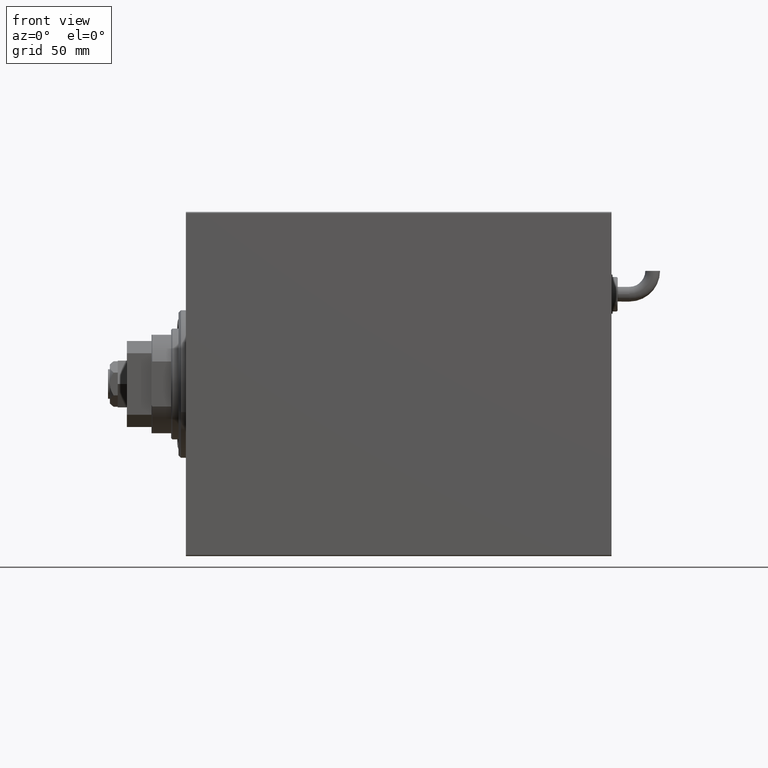
[diagram: clean part render]
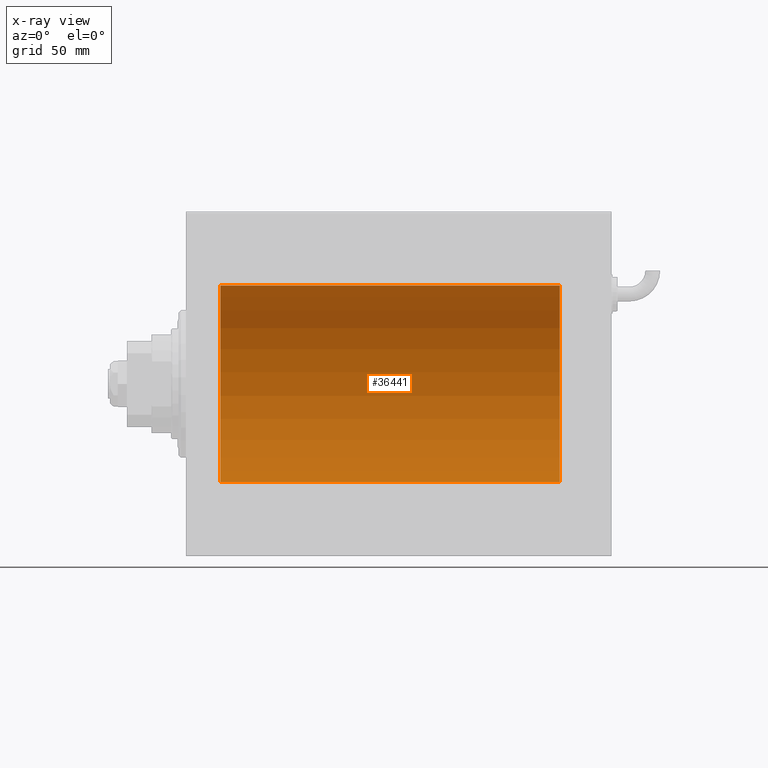
[diagram: x-ray — body ghosted, one internal face saturated and labeled with its STEP entity id]
A machine part, front view, then the same camera in x-ray: the body is ghosted and one INTERNAL B-rep face — a face not visible from any outside direction — is saturated and labeled: STEP entity #36441.
In plain terms, the highlighted cylindrical surface (partial cylindrical patch) has radius 40 mm, axis along (-1, -0, -0).
Its self-contained STEP definition (entity closure, byte-faithful):
#92 = CARTESIAN_POINT ( 'NONE',  ( 147.3935020639295033, 2.980544951704983792, -39.88881833341081062 ) ) ;
#997 = CARTESIAN_POINT ( 'NONE',  ( 146.0319915523671455, 2.846249845702965242, -39.89867772821342129 ) ) ;
#1017 = CARTESIAN_POINT ( 'NONE',  ( 152.0000000000000000, 4.898587196589413026E-15, -40.00000000000000000 ) ) ;
#1299 = CARTESIAN_POINT ( 'NONE',  ( 146.8031755022305731, 2.999929504480790321, -39.88734665245503663 ) ) ;
#1427 = CARTESIAN_POINT ( 'NONE',  ( 33.74070487342093827, 1.983397227149410025, -39.95103655448513535 ) ) ;
#2005 = CARTESIAN_POINT ( 'NONE',  ( 34.49643569916604946, 2.603499486649436090, -39.91533365697402758 ) ) ;
#4627 = CARTESIAN_POINT ( 'NONE',  ( 147.1946696137275978, 3.000070108558746007, -39.88733607736548237 ) ) ;
#4804 = ORIENTED_EDGE ( 'NONE', *, *, #52310, .F. ) ;
#5397 = CARTESIAN_POINT ( 'NONE',  ( 152.0000000000000000, 4.898587196589413026E-15, -40.00000000000000000 ) ) ;
#5424 = LINE ( 'NONE', #37148, #52352 ) ;
#5538 = CARTESIAN_POINT ( 'NONE',  ( 145.1684626644925515, 2.384195078505191745, -39.92903310064217237 ) ) ;
#6130 = CARTESIAN_POINT ( 'NONE',  ( 150.0000000000000284, 0.1958295874890079447, -39.99999999999999289 ) ) ;
#6263 = CARTESIAN_POINT ( 'NONE',  ( 38.69635323069529420, 1.329803094607265201, -39.97830262548650637 ) ) ;
#6428 = CARTESIAN_POINT ( 'NONE',  ( 148.3286925611234324, 2.696891635062796500, -39.90905226542625428 ) ) ;
#6842 = CARTESIAN_POINT ( 'NONE',  ( 38.26098393863168923, 1.981711254113870613, -39.95112616827061913 ) ) ;
#7008 = CARTESIAN_POINT ( 'NONE',  ( 149.9036449538775173, 0.7792872749133293864, -39.99287049138470707 ) ) ;
#7313 = CARTESIAN_POINT ( 'NONE',  ( 147.9653829776025589, 2.847223932150704240, -39.89860891179019120 ) ) ;
#7919 = EDGE_LOOP ( 'NONE', ( #4804, #9929, #53117, #31182, #26286, #40739, #33252, #50704 ) ) ;
#8629 = B_SPLINE_CURVE_WITH_KNOTS ( 'NONE', 3,
 ( #23682, #24283, #19144, #37559, #41481, #14606, #27612, #33031, #51480, #10076, #5538, #10374, #28511, #997, #51795, #42683, #1299, #4627, #92, #25155, #7313, #6428, #34510, #52672, #20339, #20047, #43279, #15503, #39041, #48717, #7008, #33923, #6130, #11548 ),
 .UNSPECIFIED., .F., .F.,
 ( 4, 2, 2, 2, 2, 2, 2, 2, 2, 2, 2, 2, 2, 2, 2, 2, 4 ),
 ( 2.203917256251973750E-18, 0.0005864162728940708162, 0.001172832545788139464, 0.001759248818682208112, 0.002345665091576277193, 0.002932081364470346275, 0.003518497637364414923, 0.004104913910258484004, 0.004691330183152552652, 0.005277746456046621300, 0.005864162728940689948, 0.006450579001834758595, 0.007036995274728826376, 0.007623411547622895024, 0.008209827820516962804, 0.008796244093411032319, 0.009382660366305101834 ),
 .UNSPECIFIED. ) ;
#8794 = EDGE_CURVE ( 'NONE', #32325, #21535, #9487, .T. ) ;
#9487 = LINE ( 'NONE', #1017, #12137 ) ;
#9552 = DIRECTION ( 'NONE',  ( -1.000000000000000000, -0.000000000000000000, -0.000000000000000000 ) ) ;
#9627 = DIRECTION ( 'NONE',  ( -1.000000000000000000, -0.000000000000000000, -0.000000000000000000 ) ) ;
#9929 = ORIENTED_EDGE ( 'NONE', *, *, #40840, .F. ) ;
#10076 = CARTESIAN_POINT ( 'NONE',  ( 145.0174478800970519, 2.260036752248971492, -39.93634209860680073 ) ) ;
#10374 = CARTESIAN_POINT ( 'NONE',  ( 145.4964356991661134, 2.603499486649421879, -39.91533365697404889 ) ) ;
#10496 = CARTESIAN_POINT ( 'NONE',  ( 35.80317550223061573, 2.999929504480807196, -39.88734665245503663 ) ) ;
#10695 = VERTEX_POINT ( 'NONE', #45301 ) ;
#10802 = CARTESIAN_POINT ( 'NONE',  ( 37.32869256112343237, 2.696891635062812487, -39.90905226542624717 ) ) ;
#11054 = B_SPLINE_CURVE_WITH_KNOTS ( 'NONE', 3,
 ( #24408, #24992, #19881, #47958, #15932, #34642, #53100, #42816, #1427, #11678, #38577, #2005, #34348, #52504, #38285, #52806, #10496, #15337, #33751, #52210, #29232, #10802, #28936, #47356, #57036, #6842, #20467, #47666, #6263, #24709, #57347, #57640, #15627, #43110 ),
 .UNSPECIFIED., .F., .F.,
 ( 4, 2, 2, 2, 2, 2, 2, 2, 2, 2, 2, 2, 2, 2, 2, 2, 4 ),
 ( 3.904922793221654316E-19, 0.0005864162728940700573, 0.001172832545788139681, 0.001759248818682208762, 0.002345665091576278061, 0.002932081364470347576, 0.003518497637364417091, 0.004104913910258486606, 0.004691330183152556121, 0.005277746456046625637, 0.005864162728940695152, 0.006450579001834764667, 0.007036995274728834182, 0.007623411547622903697, 0.008209827820516973212, 0.008796244093411044462, 0.009382660366305113978 ),
 .UNSPECIFIED. ) ;
#11381 = CARTESIAN_POINT ( 'NONE',  ( 152.0000000000000000, 0.000000000000000000, 0.000000000000000000 ) ) ;
#11548 = CARTESIAN_POINT ( 'NONE',  ( 150.0000000000000284, 4.898587181765620889E-15, -40.00000000000000000 ) ) ;
#11678 = CARTESIAN_POINT ( 'NONE',  ( 34.01744788009703058, 2.260036752248987479, -39.93634209860680073 ) ) ;
#12137 = VECTOR ( 'NONE', #46338, 1000.000000000000000 ) ;
#12669 = VERTEX_POINT ( 'NONE', #41771 ) ;
#13089 = DIRECTION ( 'NONE',  ( -1.000000000000000000, 0.000000000000000000, 0.000000000000000000 ) ) ;
#13164 = CYLINDRICAL_SURFACE ( 'NONE', #37257, 40.00000000000000000 ) ;
#13394 = EDGE_CURVE ( 'NONE', #32325, #42146, #8629, .T. ) ;
#14606 = CARTESIAN_POINT ( 'NONE',  ( 144.3040879581895979, 1.330687358699877310, -39.97827280031937391 ) ) ;
#15337 = CARTESIAN_POINT ( 'NONE',  ( 36.19466961372759073, 3.000070108558761994, -39.88733607736547526 ) ) ;
#15503 = CARTESIAN_POINT ( 'NONE',  ( 149.6024213809766081, 1.505187563392005323, -39.97200074276641146 ) ) ;
#15627 = CARTESIAN_POINT ( 'NONE',  ( 39.00000000000000000, 0.1958295874890065291, -40.00000000000000711 ) ) ;
#15932 = CARTESIAN_POINT ( 'NONE',  ( 33.15345075433262423, 0.9673820216299632291, -39.98871336974453072 ) ) ;
#16047 = CARTESIAN_POINT ( 'NONE',  ( 152.0000000000000000, 0.000000000000000000, 40.00000000000000000 ) ) ;
#16133 = AXIS2_PLACEMENT_3D ( 'NONE', #11381, #42805, #25276 ) ;
#17673 = CARTESIAN_POINT ( 'NONE',  ( 150.0000000000000284, 4.898587181765620889E-15, -40.00000000000000000 ) ) ;
#17990 = DIRECTION ( 'NONE',  ( -1.000000000000000000, -0.000000000000000000, -0.000000000000000000 ) ) ;
#19144 = CARTESIAN_POINT ( 'NONE',  ( 144.0194663043102423, 0.3932559001416424116, -39.99852666141217128 ) ) ;
#19881 = CARTESIAN_POINT ( 'NONE',  ( 33.01946630431021390, 0.3932559001416509048, -39.99852666141217838 ) ) ;
#19937 = DIRECTION ( 'NONE',  ( -1.000000000000000000, -0.000000000000000000, -0.000000000000000000 ) ) ;
#20047 = CARTESIAN_POINT ( 'NONE',  ( 149.2609839386317105, 1.981711254113862841, -39.95112616827061203 ) ) ;
#20339 = CARTESIAN_POINT ( 'NONE',  ( 148.9808298560388948, 2.261756164323876384, -39.93625070860935722 ) ) ;
#20467 = CARTESIAN_POINT ( 'NONE',  ( 38.38516937969400544, 1.830069308885378776, -39.95844440547435283 ) ) ;
#21535 = VERTEX_POINT ( 'NONE', #34566 ) ;
#23560 = AXIS2_PLACEMENT_3D ( 'NONE', #31217, #13089, #58137 ) ;
#23565 = EDGE_CURVE ( 'NONE', #48151, #53767, #5424, .T. ) ;
#23682 = CARTESIAN_POINT ( 'NONE',  ( 144.0000000000000284, 2.642090954555614270E-16, -40.00000000000000000 ) ) ;
#24283 = CARTESIAN_POINT ( 'NONE',  ( 144.0000000000000568, 0.1982918730505173199, -40.00000000000000000 ) ) ;
#24408 = CARTESIAN_POINT ( 'NONE',  ( 32.99999999999999289, 8.398598542115384856E-15, -40.00000000000000000 ) ) ;
#24709 = CARTESIAN_POINT ( 'NONE',  ( 38.84691433360895019, 0.9663207501652123499, -39.98873943115997776 ) ) ;
#24992 = CARTESIAN_POINT ( 'NONE',  ( 32.99999999999998579, 0.1982918730505277005, -39.99999999999999289 ) ) ;
#25155 = CARTESIAN_POINT ( 'NONE',  ( 147.7783335886197733, 2.903909245874797485, -39.89447063612583122 ) ) ;
#25276 = DIRECTION ( 'NONE',  ( 0.000000000000000000, 0.000000000000000000, 1.000000000000000000 ) ) ;
#25987 = EDGE_CURVE ( 'NONE', #51484, #12669, #37949, .T. ) ;
#26141 = CARTESIAN_POINT ( 'NONE',  ( 32.99999999999999289, 8.398598542115384856E-15, -40.00000000000000000 ) ) ;
#26286 = ORIENTED_EDGE ( 'NONE', *, *, #25987, .F. ) ;
#27612 = CARTESIAN_POINT ( 'NONE',  ( 144.3962588482174851, 1.502986292339231644, -39.97208601512195969 ) ) ;
#28287 = CARTESIAN_POINT ( 'NONE',  ( 152.0000000000000000, 4.898587196589413026E-15, -40.00000000000000000 ) ) ;
#28511 = CARTESIAN_POINT ( 'NONE',  ( 145.6709769446328266, 2.696641662727008448, -39.90906847305313221 ) ) ;
#28936 = CARTESIAN_POINT ( 'NONE',  ( 37.50429356860058761, 2.602941461497656039, -39.91536715259250911 ) ) ;
#29232 = CARTESIAN_POINT ( 'NONE',  ( 36.96538297760252334, 2.847223932150720671, -39.89860891179020541 ) ) ;
#31182 = ORIENTED_EDGE ( 'NONE', *, *, #31941, .T. ) ;
#31217 = CARTESIAN_POINT ( 'NONE',  ( 13.99999999999998401, 0.000000000000000000, 0.000000000000000000 ) ) ;
#31941 = EDGE_CURVE ( 'NONE', #53767, #12669, #48649, .T. ) ;
#32185 = VECTOR ( 'NONE', #9552, 1000.000000000000000 ) ;
#32325 = VERTEX_POINT ( 'NONE', #43833 ) ;
#33031 = CARTESIAN_POINT ( 'NONE',  ( 144.6140089725256814, 1.829066045078048930, -39.95849278436325136 ) ) ;
#33252 = ORIENTED_EDGE ( 'NONE', *, *, #8794, .F. ) ;
#33751 = CARTESIAN_POINT ( 'NONE',  ( 36.39350206392951037, 2.980544951704998002, -39.88881833341080352 ) ) ;
#33923 = CARTESIAN_POINT ( 'NONE',  ( 149.9803741230966807, 0.3947312521144693553, -39.99851454786935534 ) ) ;
#34348 = CARTESIAN_POINT ( 'NONE',  ( 34.67097694463277691, 2.696641662727018662, -39.90906847305313221 ) ) ;
#34510 = CARTESIAN_POINT ( 'NONE',  ( 148.5042935686005592, 2.602941461497646713, -39.91536715259250911 ) ) ;
#34566 = CARTESIAN_POINT ( 'NONE',  ( 39.00000000000000000, 4.898587181754971267E-15, -40.00000000000000000 ) ) ;
#34642 = CARTESIAN_POINT ( 'NONE',  ( 33.30408795818954104, 1.330687358699887968, -39.97827280031936681 ) ) ;
#36441 = ADVANCED_FACE ( 'NONE', ( #36693 ), #13164, .F. ) ;
#36635 = CARTESIAN_POINT ( 'NONE',  ( 13.99999999999998401, 0.000000000000000000, 40.00000000000000000 ) ) ;
#36693 = FACE_OUTER_BOUND ( 'NONE', #7919, .T. ) ;
#37148 = CARTESIAN_POINT ( 'NONE',  ( 152.0000000000000000, 0.000000000000000000, 40.00000000000000000 ) ) ;
#37257 = AXIS2_PLACEMENT_3D ( 'NONE', #59405, #17990, #45770 ) ;
#37559 = CARTESIAN_POINT ( 'NONE',  ( 144.0957262881456984, 0.7768046863726094653, -39.99291636985139320 ) ) ;
#37949 = LINE ( 'NONE', #28287, #32185 ) ;
#38285 = CARTESIAN_POINT ( 'NONE',  ( 35.22113368114476373, 2.903851887155405986, -39.89447500423337800 ) ) ;
#38577 = CARTESIAN_POINT ( 'NONE',  ( 34.16846266449255154, 2.384195078505205512, -39.92903310064217948 ) ) ;
#39041 = CARTESIAN_POINT ( 'NONE',  ( 149.6963532306953368, 1.329803094607256986, -39.97830262548651348 ) ) ;
#40739 = ORIENTED_EDGE ( 'NONE', *, *, #41609, .T. ) ;
#40840 = EDGE_CURVE ( 'NONE', #48151, #10695, #42157, .T. ) ;
#41481 = CARTESIAN_POINT ( 'NONE',  ( 144.1534507543327095, 0.9673820216299533481, -39.98871336974455204 ) ) ;
#41609 = EDGE_CURVE ( 'NONE', #51484, #21535, #11054, .T. ) ;
#41771 = CARTESIAN_POINT ( 'NONE',  ( 13.99999999999998401, 4.898587196589413026E-15, -40.00000000000000000 ) ) ;
#42146 = VERTEX_POINT ( 'NONE', #17673 ) ;
#42157 = CIRCLE ( 'NONE', #16133, 40.00000000000000000 ) ;
#42683 = CARTESIAN_POINT ( 'NONE',  ( 146.6084575790990527, 2.980886287300809734, -39.88879301994634119 ) ) ;
#42805 = DIRECTION ( 'NONE',  ( -1.000000000000000000, 0.000000000000000000, 0.000000000000000000 ) ) ;
#42816 = CARTESIAN_POINT ( 'NONE',  ( 33.61400897252563880, 1.829066045078060476, -39.95849278436324425 ) ) ;
#43110 = CARTESIAN_POINT ( 'NONE',  ( 39.00000000000000000, 4.898587181754971267E-15, -40.00000000000000000 ) ) ;
#43279 = CARTESIAN_POINT ( 'NONE',  ( 149.3851693796940481, 1.830069308885375223, -39.95844440547435994 ) ) ;
#43833 = CARTESIAN_POINT ( 'NONE',  ( 144.0000000000000284, 2.642090954555614270E-16, -40.00000000000000000 ) ) ;
#45301 = CARTESIAN_POINT ( 'NONE',  ( 152.0000000000000000, 4.898587196589413026E-15, -40.00000000000000000 ) ) ;
#45770 = DIRECTION ( 'NONE',  ( 0.000000000000000000, 0.000000000000000000, 1.000000000000000000 ) ) ;
#46338 = DIRECTION ( 'NONE',  ( -1.000000000000000000, -0.000000000000000000, -0.000000000000000000 ) ) ;
#47356 = CARTESIAN_POINT ( 'NONE',  ( 37.82931819589460076, 2.385749008316991215, -39.92893738690724348 ) ) ;
#47666 = CARTESIAN_POINT ( 'NONE',  ( 38.60242138097658682, 1.505187563392005323, -39.97200074276641857 ) ) ;
#47958 = CARTESIAN_POINT ( 'NONE',  ( 33.09572628814569129, 0.7768046863726183471, -39.99291636985139320 ) ) ;
#48151 = VERTEX_POINT ( 'NONE', #16047 ) ;
#48649 = CIRCLE ( 'NONE', #23560, 40.00000000000000000 ) ;
#48717 = CARTESIAN_POINT ( 'NONE',  ( 149.8469143336090212, 0.9663207501652061326, -39.98873943115997065 ) ) ;
#50704 = ORIENTED_EDGE ( 'NONE', *, *, #13394, .T. ) ;
#51037 = LINE ( 'NONE', #5397, #51123 ) ;
#51123 = VECTOR ( 'NONE', #9627, 1000.000000000000000 ) ;
#51480 = CARTESIAN_POINT ( 'NONE',  ( 144.7407048734210093, 1.983397227149396036, -39.95103655448513535 ) ) ;
#51484 = VERTEX_POINT ( 'NONE', #26141 ) ;
#51795 = CARTESIAN_POINT ( 'NONE',  ( 146.2211336811448348, 2.903851887155393108, -39.89447500423338511 ) ) ;
#52210 = CARTESIAN_POINT ( 'NONE',  ( 36.77833358861975199, 2.903909245874810363, -39.89447063612582411 ) ) ;
#52310 = EDGE_CURVE ( 'NONE', #10695, #42146, #51037, .T. ) ;
#52352 = VECTOR ( 'NONE', #19937, 1000.000000000000000 ) ;
#52504 = CARTESIAN_POINT ( 'NONE',  ( 35.03199155236713835, 2.846249845702978565, -39.89867772821342129 ) ) ;
#52672 = CARTESIAN_POINT ( 'NONE',  ( 148.8293181958946150, 2.385749008316984998, -39.92893738690724348 ) ) ;
#52806 = CARTESIAN_POINT ( 'NONE',  ( 35.60845757909898879, 2.980886287300823945, -39.88879301994635540 ) ) ;
#53100 = CARTESIAN_POINT ( 'NONE',  ( 33.39625884821743540, 1.502986292339240970, -39.97208601512195258 ) ) ;
#53117 = ORIENTED_EDGE ( 'NONE', *, *, #23565, .T. ) ;
#53767 = VERTEX_POINT ( 'NONE', #36635 ) ;
#57036 = CARTESIAN_POINT ( 'NONE',  ( 37.98082985603886641, 2.261756164323886154, -39.93625070860936432 ) ) ;
#57347 = CARTESIAN_POINT ( 'NONE',  ( 38.90364495387748889, 0.7792872749133341603, -39.99287049138470707 ) ) ;
#57640 = CARTESIAN_POINT ( 'NONE',  ( 38.98037412309665228, 0.3947312521144721309, -39.99851454786933402 ) ) ;
#58137 = DIRECTION ( 'NONE',  ( 0.000000000000000000, 0.000000000000000000, 1.000000000000000000 ) ) ;
#59405 = CARTESIAN_POINT ( 'NONE',  ( 152.0000000000000000, 0.000000000000000000, 0.000000000000000000 ) ) ;